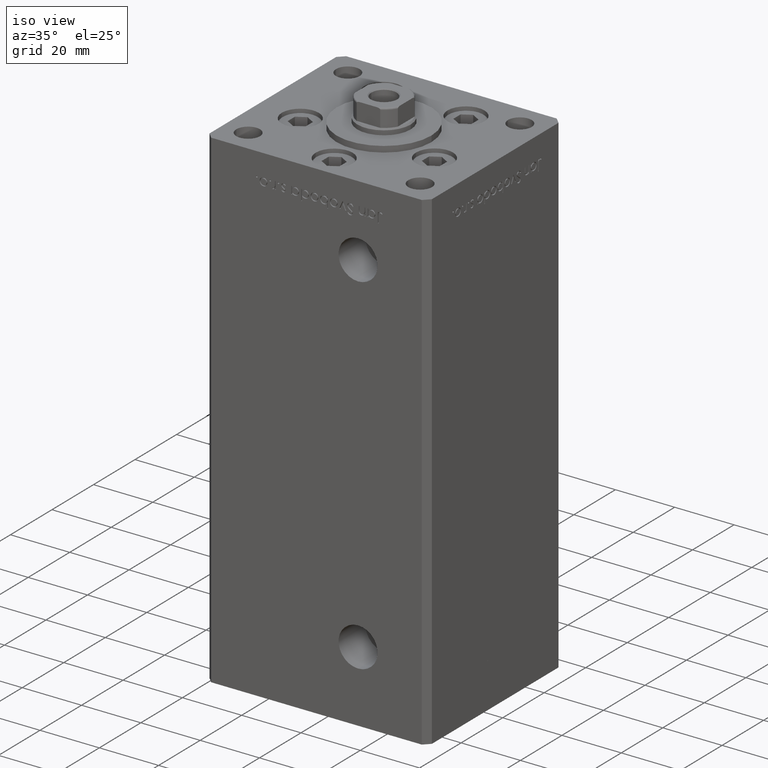
[diagram: clean part render]
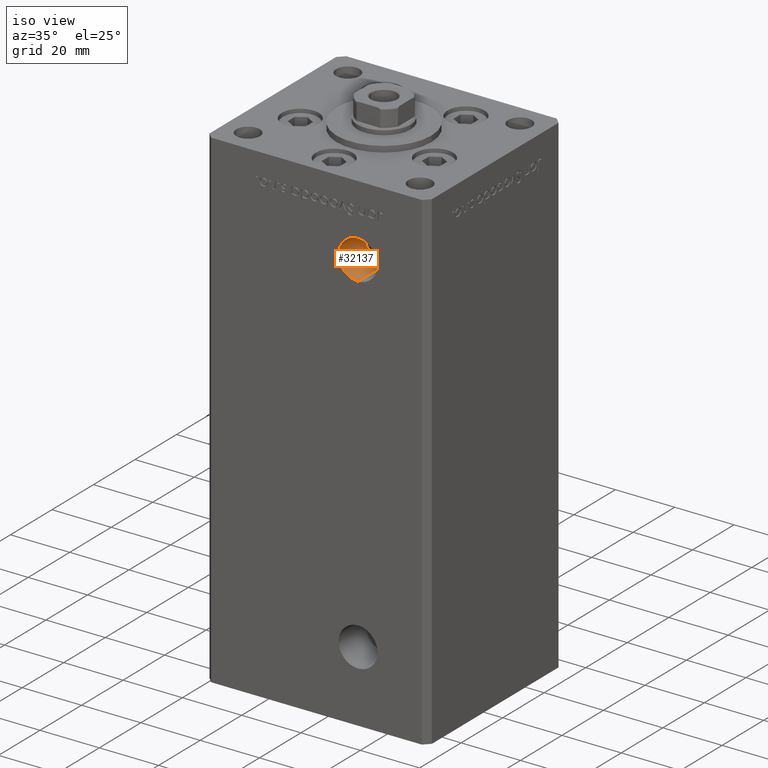
[diagram: same view with one face highlighted and labeled with its STEP entity id]
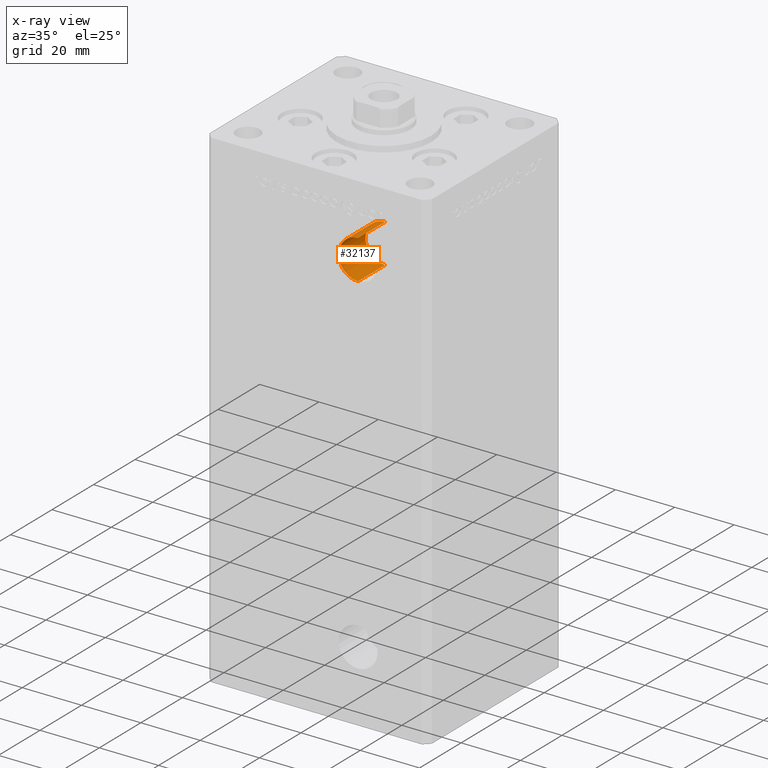
[diagram: x-ray of the same camera — body ghosted, the highlighted face saturated]
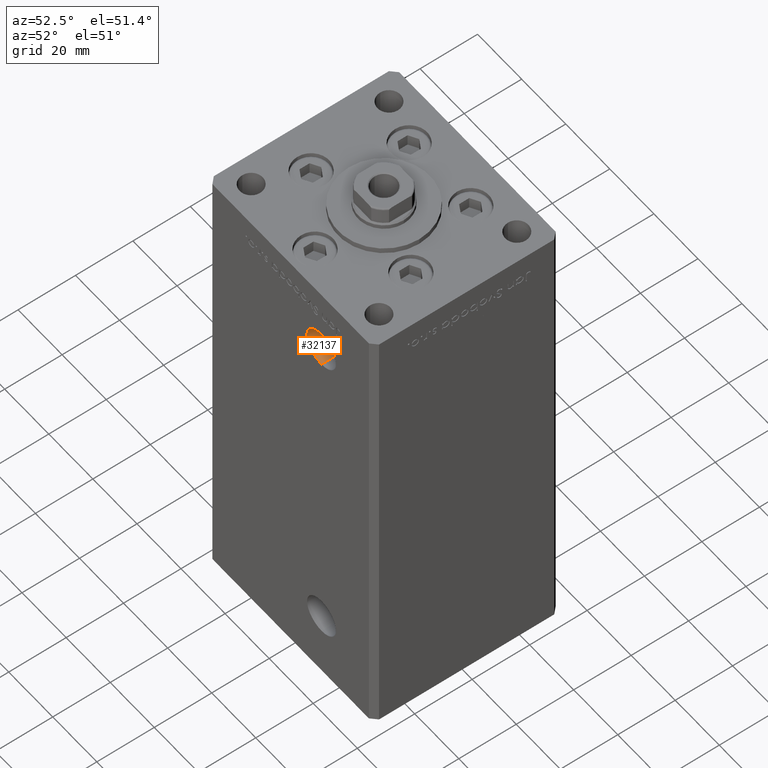
[diagram: same view with one face highlighted and labeled with its STEP entity id]
A machine part, iso view. The second image highlights one B-rep face of the part: STEP entity #32137.
The next image is the same camera in x-ray: the body ghosted, the highlighted face saturated — about 0% of this face is hidden behind the body in this view.
A second angle (auxiliary view) of the same face is appended — the face is thin or edge-on in the first view.
In plain terms, the highlighted cylindrical surface (edge-blend (fillet) strip) has radius 6.58 mm, axis along (-0, -1, -0).
Its self-contained STEP definition (entity closure, byte-faithful):
#957 = DIRECTION ( 'NONE',  ( -0.000000000000000000, -1.000000000000000000, -0.000000000000000000 ) ) ;
#6091 = AXIS2_PLACEMENT_3D ( 'NONE', #19467, #35833, #11267 ) ;
#7409 = CARTESIAN_POINT ( 'NONE',  ( 13.99999999999999112, -19.50000000000000355, 127.0000000000000000 ) ) ;
#11027 = EDGE_CURVE ( 'NONE', #24450, #27333, #50282, .T. ) ;
#11267 = DIRECTION ( 'NONE',  ( 0.000000000000000000, 0.000000000000000000, -1.000000000000000000 ) ) ;
#12907 = EDGE_LOOP ( 'NONE', ( #28829, #48328, #17740, #43189 ) ) ;
#13061 = VERTEX_POINT ( 'NONE', #25582 ) ;
#14114 = DIRECTION ( 'NONE',  ( -0.000000000000000000, -1.000000000000000000, -0.000000000000000000 ) ) ;
#14293 = CARTESIAN_POINT ( 'NONE',  ( 13.99999999999999112, -19.50000000000000355, 120.4200000000000017 ) ) ;
#17740 = ORIENTED_EDGE ( 'NONE', *, *, #35979, .F. ) ;
#19467 = CARTESIAN_POINT ( 'NONE',  ( 13.99999999999999112, -32.50000000000000000, 127.0000000000000000 ) ) ;
#23996 = VERTEX_POINT ( 'NONE', #41307 ) ;
#24047 = DIRECTION ( 'NONE',  ( -0.000000000000000000, 1.000000000000000000, -0.000000000000000000 ) ) ;
#24450 = VERTEX_POINT ( 'NONE', #14293 ) ;
#25582 = CARTESIAN_POINT ( 'NONE',  ( 13.99999999999999112, -19.50000000000000355, 133.5800000000000125 ) ) ;
#27333 = VERTEX_POINT ( 'NONE', #48188 ) ;
#28829 = ORIENTED_EDGE ( 'NONE', *, *, #42058, .T. ) ;
#30733 = CARTESIAN_POINT ( 'NONE',  ( 13.99999999999999112, -19.50000000000000355, 120.4200000000000017 ) ) ;
#32137 = ADVANCED_FACE ( 'NONE', ( #39523 ), #35557, .F. ) ;
#32214 = EDGE_CURVE ( 'NONE', #13061, #23996, #48496, .T. ) ;
#35403 = DIRECTION ( 'NONE',  ( 0.000000000000000000, 0.000000000000000000, -1.000000000000000000 ) ) ;
#35557 = CYLINDRICAL_SURFACE ( 'NONE', #40596, 6.580000000000002736 ) ;
#35833 = DIRECTION ( 'NONE',  ( -0.000000000000000000, 1.000000000000000000, -0.000000000000000000 ) ) ;
#35979 = EDGE_CURVE ( 'NONE', #27333, #23996, #44889, .T. ) ;
#37461 = CIRCLE ( 'NONE', #39155, 6.580000000000002736 ) ;
#39005 = DIRECTION ( 'NONE',  ( 0.000000000000000000, 0.000000000000000000, -1.000000000000000000 ) ) ;
#39155 = AXIS2_PLACEMENT_3D ( 'NONE', #7409, #24047, #35403 ) ;
#39523 = FACE_OUTER_BOUND ( 'NONE', #12907, .T. ) ;
#39714 = VECTOR ( 'NONE', #957, 1000.000000000000000 ) ;
#40596 = AXIS2_PLACEMENT_3D ( 'NONE', #46918, #47702, #39005 ) ;
#41307 = CARTESIAN_POINT ( 'NONE',  ( 13.99999999999999112, -32.50000000000000000, 133.5800000000000125 ) ) ;
#42058 = EDGE_CURVE ( 'NONE', #24450, #13061, #37461, .T. ) ;
#43189 = ORIENTED_EDGE ( 'NONE', *, *, #11027, .F. ) ;
#44889 = CIRCLE ( 'NONE', #6091, 6.580000000000002736 ) ;
#46918 = CARTESIAN_POINT ( 'NONE',  ( 13.99999999999999112, -19.50000000000000355, 127.0000000000000000 ) ) ;
#47702 = DIRECTION ( 'NONE',  ( -0.000000000000000000, -1.000000000000000000, -0.000000000000000000 ) ) ;
#48188 = CARTESIAN_POINT ( 'NONE',  ( 13.99999999999999112, -32.50000000000000000, 120.4200000000000017 ) ) ;
#48328 = ORIENTED_EDGE ( 'NONE', *, *, #32214, .T. ) ;
#48496 = LINE ( 'NONE', #52161, #39714 ) ;
#50282 = LINE ( 'NONE', #30733, #51880 ) ;
#51880 = VECTOR ( 'NONE', #14114, 1000.000000000000000 ) ;
#52161 = CARTESIAN_POINT ( 'NONE',  ( 13.99999999999999112, -19.50000000000000355, 133.5800000000000125 ) ) ;